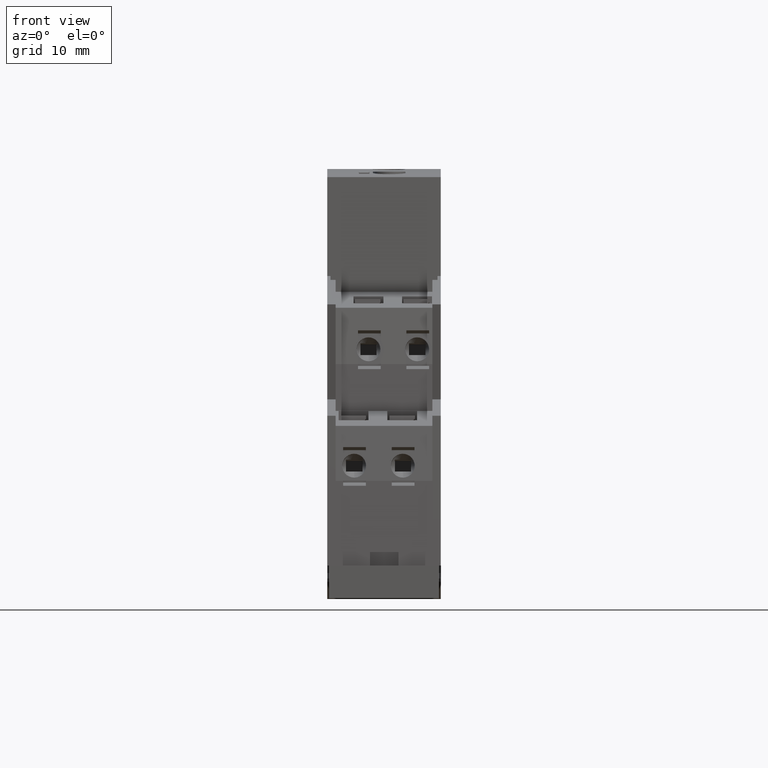
[diagram: clean part render]
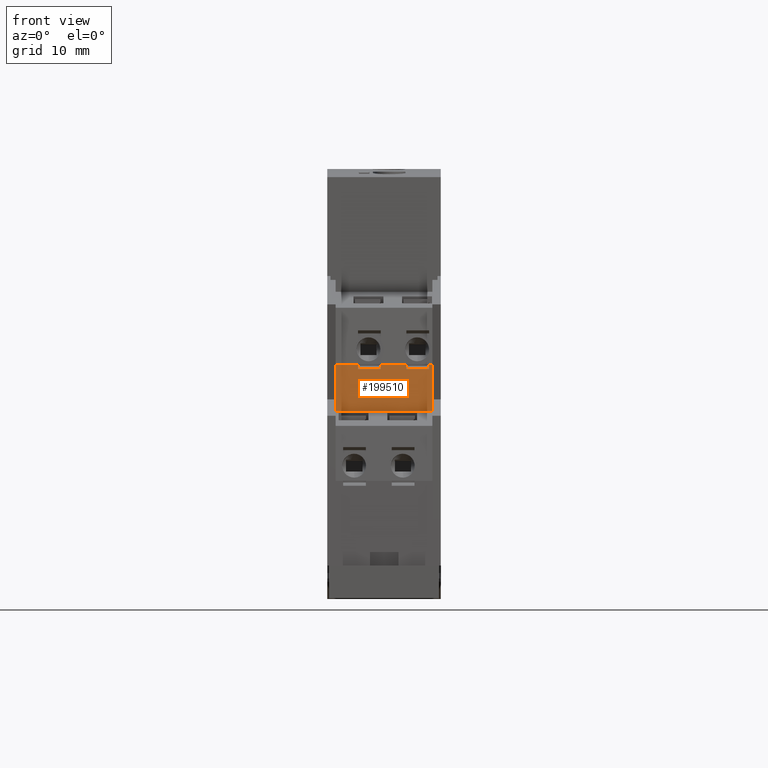
[diagram: same view with one face highlighted and labeled with its STEP entity id]
A machine part, front view. The second image highlights one B-rep face of the part: STEP entity #199510.
In plain terms, the highlighted planar face has unit normal (0, -1, 0.0017).
Its self-contained STEP definition (entity closure, byte-faithful):
#41390=CARTESIAN_POINT('',(-52.5262537596842,31.0849066256016,
1.29999999999998));
#41400=VERTEX_POINT('',#41390);
#41430=CARTESIAN_POINT('',(-52.5387764656732,23.9099318984209,
1.29999999999998));
#41440=DIRECTION('',(0.00174532836590086,0.999998476913288,
6.93022028652734E-16));
#41450=VECTOR('',#41440,1.);
#41460=LINE('',#41430,#41450);
#41470=CARTESIAN_POINT('',(-52.5388281766886,23.8803036991792,
1.29999999999997));
#41480=VERTEX_POINT('',#41470);
#41490=EDGE_CURVE('',#41480,#41400,#41460,.T.);
#50200=CARTESIAN_POINT('',(-52.5388281766886,23.8803036991792,16.2));
#50210=VERTEX_POINT('',#50200);
#50240=CARTESIAN_POINT('',(-52.5387764656732,23.9099318984209,16.2));
#50250=DIRECTION('',(-0.00174532836590086,-0.999998476913288,
-6.89118900831787E-16));
#50260=VECTOR('',#50250,1.);
#50270=LINE('',#50240,#50260);
#50280=CARTESIAN_POINT('',(-52.5262537596841,31.0849066256022,16.2));
#50290=VERTEX_POINT('',#50280);
#50300=EDGE_CURVE('',#50290,#50210,#50270,.T.);
#197480=CARTESIAN_POINT('',(-52.5262537596841,31.0849066256022,0.));
#197490=DIRECTION('',(1.18758417905695E-18,-6.93025158539903E-16,1.));
#197500=VECTOR('',#197490,1.);
#197510=LINE('',#197480,#197500);
#197520=CARTESIAN_POINT('',(-52.5262537596841,31.0849066256023,
15.7000000000388));
#197530=VERTEX_POINT('',#197520);
#197540=EDGE_CURVE('',#197530,#50290,#197510,.T.);
#198100=CARTESIAN_POINT('',(-52.5262537596841,31.0849066256023,
12.2000000000388));
#198110=VERTEX_POINT('',#198100);
#198140=CARTESIAN_POINT('',(-52.5262537596841,31.0849066256023,
8.25000000003876));
#198150=VERTEX_POINT('',#198140);
#198160=EDGE_CURVE('',#198150,#198110,#197510,.T.);
#198720=CARTESIAN_POINT('',(-52.5262537596841,31.0849066256023,
4.75000000003876));
#198730=VERTEX_POINT('',#198720);
#198760=EDGE_CURVE('',#41400,#198730,#197510,.T.);
#198890=CARTESIAN_POINT('',(-52.5388281766886,23.8803036991792,
1.29999999999998));
#198900=DIRECTION('',(-0.999998476913288,0.00174532836590086,
2.39713883774591E-18));
#198910=DIRECTION('',(0.00174532836590086,0.999998476913288,
6.93022030278138E-16));
#198920=AXIS2_PLACEMENT_3D('',#198890,#198900,#198910);
#198930=PLANE('',#198920);
#198940=ORIENTED_EDGE('',*,*,#198760,.F.);
#198950=CARTESIAN_POINT('',(-52.5387764656732,23.9099318984209,
4.75000000003876));
#198960=DIRECTION('',(0.00174532836590086,0.999998476913288,
-2.13804668414141E-16));
#198970=VECTOR('',#198960,1.);
#198980=LINE('',#198950,#198970);
#198990=CARTESIAN_POINT('',(-52.5275801853176,30.3249214909072,
4.75000000003876));
#199000=VERTEX_POINT('',#198990);
#199010=EDGE_CURVE('',#199000,#198730,#198980,.T.);
#199020=ORIENTED_EDGE('',*,*,#199010,.T.);
#199030=CARTESIAN_POINT('',(-52.5275801853176,30.3249214909072,17.5));
#199040=DIRECTION('',(3.61432692779078E-18,6.97394604300317E-16,1.));
#199050=VECTOR('',#199040,1.);
#199060=LINE('',#199030,#199050);
#199070=CARTESIAN_POINT('',(-52.5275801853176,30.3249214909072,
8.25000000003876));
#199080=VERTEX_POINT('',#199070);
#199090=EDGE_CURVE('',#199000,#199080,#199060,.T.);
#199100=ORIENTED_EDGE('',*,*,#199090,.F.);
#199110=CARTESIAN_POINT('',(-52.5387764656732,23.9099318984209,
8.25000000003876));
#199120=DIRECTION('',(-0.00174532836590086,-0.999998476913288,
2.13804668414141E-16));
#199130=VECTOR('',#199120,1.);
#199140=LINE('',#199110,#199130);
#199150=EDGE_CURVE('',#198150,#199080,#199140,.T.);
#199160=ORIENTED_EDGE('',*,*,#199150,.T.);
#199170=ORIENTED_EDGE('',*,*,#198160,.F.);
#199180=CARTESIAN_POINT('',(-52.5387764656732,23.9099318984209,
12.2000000000388));
#199190=DIRECTION('',(0.00174532836590086,0.999998476913288,
-2.13804668414141E-16));
#199200=VECTOR('',#199190,1.);
#199210=LINE('',#199180,#199200);
#199220=CARTESIAN_POINT('',(-52.5275801853176,30.3249214909072,
12.2000000000388));
#199230=VERTEX_POINT('',#199220);
#199240=EDGE_CURVE('',#199230,#198110,#199210,.T.);
#199250=ORIENTED_EDGE('',*,*,#199240,.T.);
#199260=CARTESIAN_POINT('',(-52.5275801853176,30.3249214909072,17.5));
#199270=DIRECTION('',(3.61432692779083E-18,6.97394604300316E-16,1.));
#199280=VECTOR('',#199270,1.);
#199290=LINE('',#199260,#199280);
#199300=CARTESIAN_POINT('',(-52.5275801853176,30.3249214909072,
15.7000000000388));
#199310=VERTEX_POINT('',#199300);
#199320=EDGE_CURVE('',#199230,#199310,#199290,.T.);
#199330=ORIENTED_EDGE('',*,*,#199320,.F.);
#199340=CARTESIAN_POINT('',(-52.5387764656732,23.9099318984209,
15.7000000000388));
#199350=DIRECTION('',(-0.00174532836590086,-0.999998476913288,
2.13804668414141E-16));
#199360=VECTOR('',#199350,1.);
#199370=LINE('',#199340,#199360);
#199380=EDGE_CURVE('',#197530,#199310,#199370,.T.);
#199390=ORIENTED_EDGE('',*,*,#199380,.T.);
#199400=ORIENTED_EDGE('',*,*,#197540,.F.);
#199410=ORIENTED_EDGE('',*,*,#50300,.F.);
#199420=CARTESIAN_POINT('',(-52.5388281766886,23.8803036991792,
1.29999999999998));
#199430=DIRECTION('',(1.18758417905695E-18,-6.93025158539903E-16,1.));
#199440=VECTOR('',#199430,1.);
#199450=LINE('',#199420,#199440);
#199460=EDGE_CURVE('',#41480,#50210,#199450,.T.);
#199470=ORIENTED_EDGE('',*,*,#199460,.T.);
#199480=ORIENTED_EDGE('',*,*,#41490,.F.);
#199490=EDGE_LOOP('',(#199480,#199470,#199410,#199400,#199390,#199330,
#199250,#199170,#199160,#199100,#199020,#198940));
#199500=FACE_OUTER_BOUND('',#199490,.T.);
#199510=ADVANCED_FACE('',(#199500),#198930,.T.);